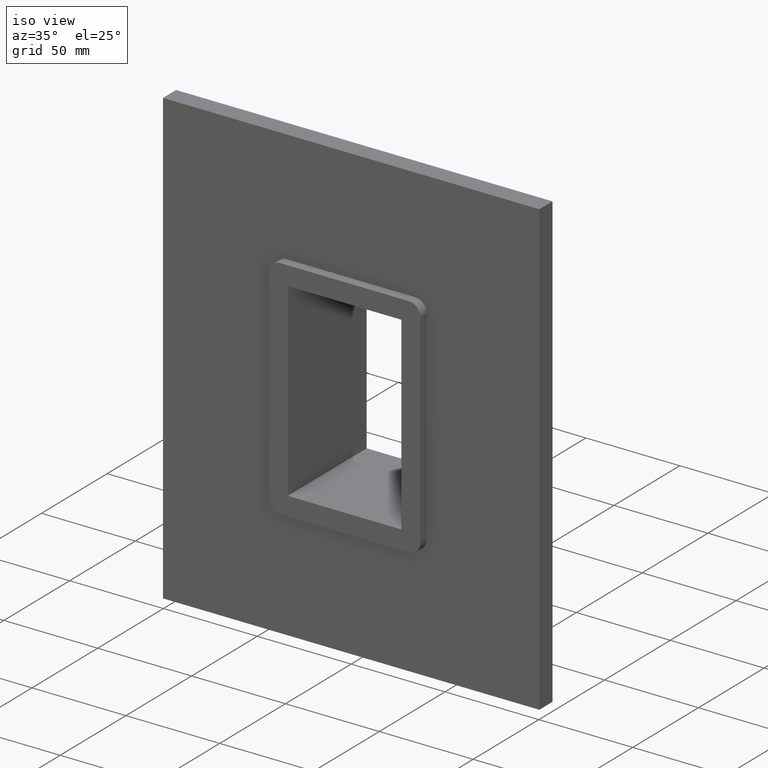
[diagram: clean part render]
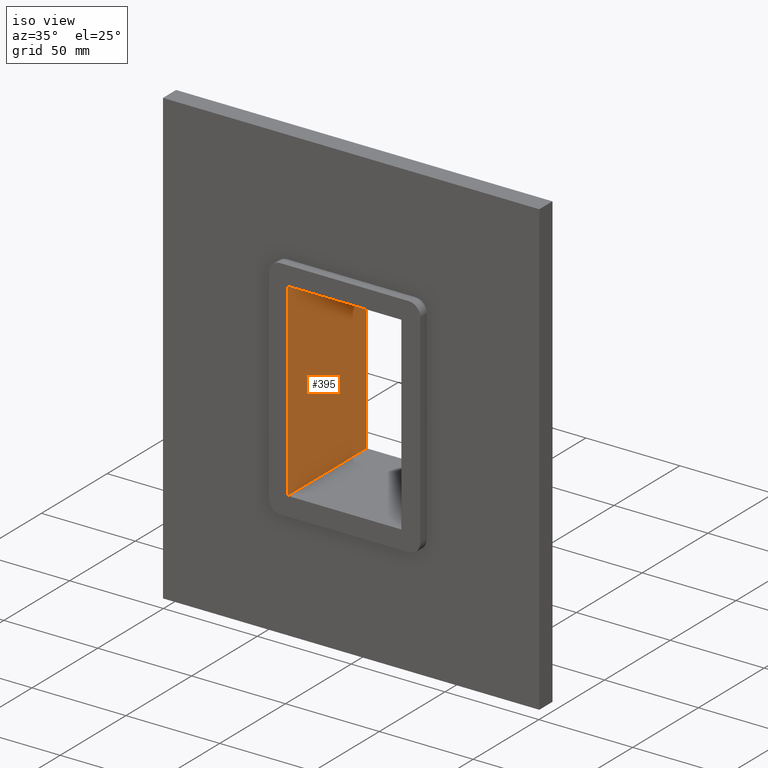
[diagram: same view with one face highlighted and labeled with its STEP entity id]
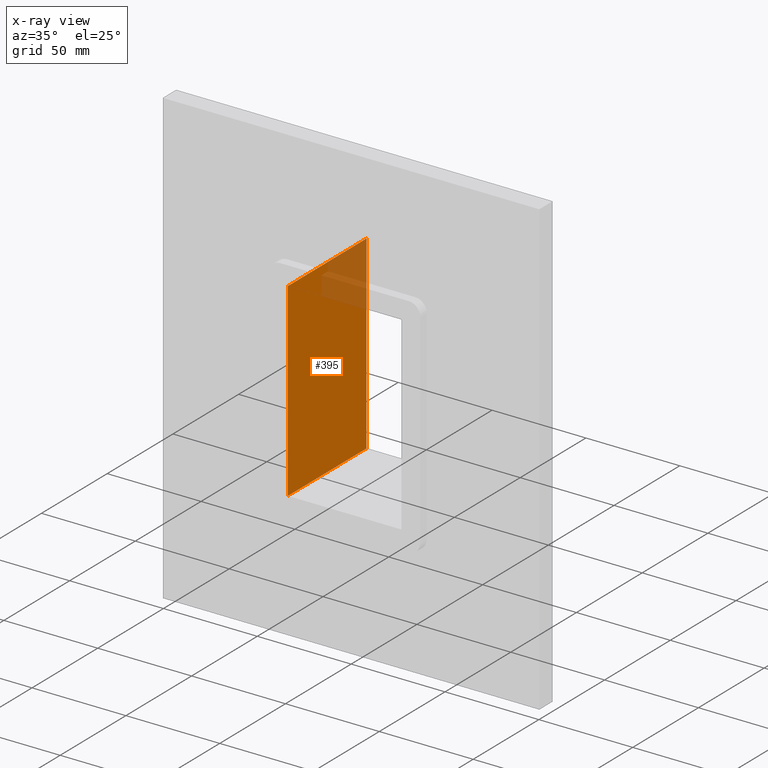
[diagram: x-ray of the same camera — body ghosted, the highlighted face saturated]
A machine part, iso view. The second image highlights one B-rep face of the part: STEP entity #395.
The next image is the same camera in x-ray: the body ghosted, the highlighted face saturated — about 13% of this face is hidden behind the body in this view.
In plain terms, the highlighted planar face has unit normal (-1, 0, 0).
Its self-contained STEP definition (entity closure, byte-faithful):
#356=CARTESIAN_POINT('',(-30.250000000000004,0.0,-50.500000000000007));
#357=DIRECTION('',(-1.0,0.0,0.0));
#358=DIRECTION('',(0.0,0.0,1.0));
#359=AXIS2_PLACEMENT_3D('',#356,#357,#358);
#360=PLANE('',#359);
#361=CARTESIAN_POINT('',(-30.250000000000004,-5.0,50.500000000000043));
#362=VERTEX_POINT('',#361);
#363=CARTESIAN_POINT('',(-30.250000000000004,55.0,50.500000000000043));
#364=VERTEX_POINT('',#363);
#365=CARTESIAN_POINT('',(-30.250000000000004,-5.0,50.500000000000043));
#366=DIRECTION('',(0.0,1.0,0.0));
#367=VECTOR('',#366,60.0);
#368=LINE('',#365,#367);
#369=EDGE_CURVE('',#362,#364,#368,.T.);
#370=ORIENTED_EDGE('',*,*,#369,.F.);
#371=CARTESIAN_POINT('',(-30.250000000000004,-5.0,-50.500000000000007));
#372=VERTEX_POINT('',#371);
#373=CARTESIAN_POINT('',(-30.250000000000004,-5.0,-50.500000000000007));
#374=DIRECTION('',(0.0,0.0,1.0));
#375=VECTOR('',#374,101.00000000000006);
#376=LINE('',#373,#375);
#377=EDGE_CURVE('',#372,#362,#376,.T.);
#378=ORIENTED_EDGE('',*,*,#377,.F.);
#379=CARTESIAN_POINT('',(-30.250000000000004,55.0,-50.500000000000007));
#380=VERTEX_POINT('',#379);
#381=CARTESIAN_POINT('',(-30.250000000000004,-5.0,-50.500000000000007));
#382=DIRECTION('',(0.0,1.0,0.0));
#383=VECTOR('',#382,60.0);
#384=LINE('',#381,#383);
#385=EDGE_CURVE('',#372,#380,#384,.T.);
#386=ORIENTED_EDGE('',*,*,#385,.T.);
#387=CARTESIAN_POINT('',(-30.250000000000004,55.0,50.500000000000043));
#388=DIRECTION('',(0.0,0.0,-1.0));
#389=VECTOR('',#388,101.00000000000006);
#390=LINE('',#387,#389);
#391=EDGE_CURVE('',#364,#380,#390,.T.);
#392=ORIENTED_EDGE('',*,*,#391,.F.);
#393=EDGE_LOOP('',(#370,#378,#386,#392));
#394=FACE_OUTER_BOUND('',#393,.T.);
#395=ADVANCED_FACE('',(#394),#360,.F.);